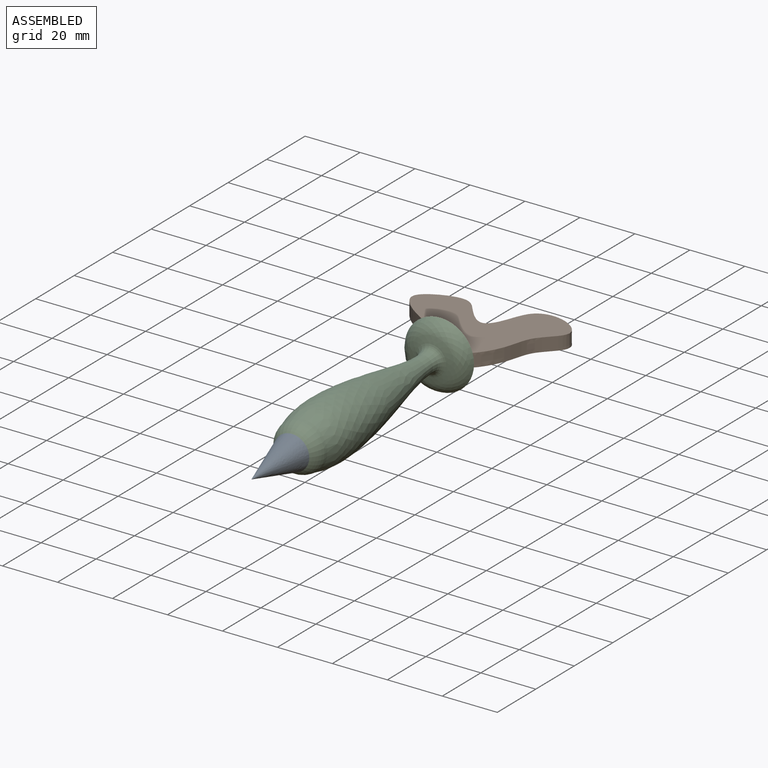
[diagram: assembled view]
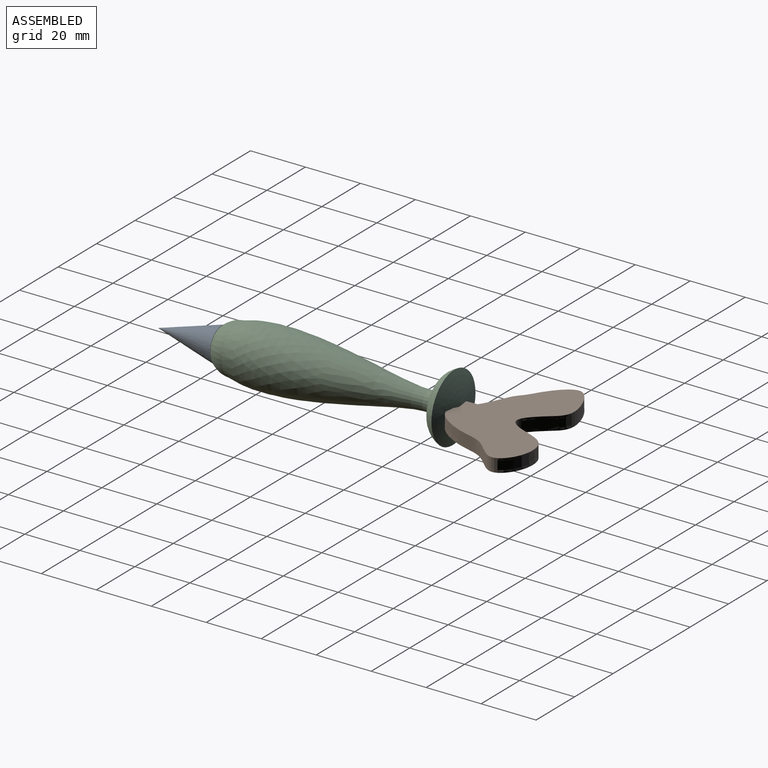
[diagram: assembled view, second angle]
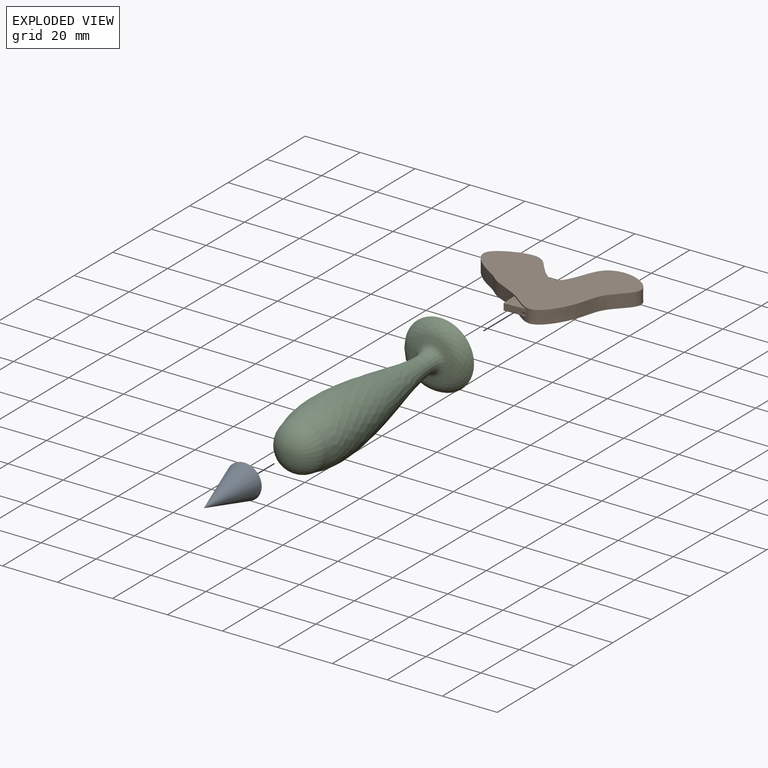
[diagram: exploded view]
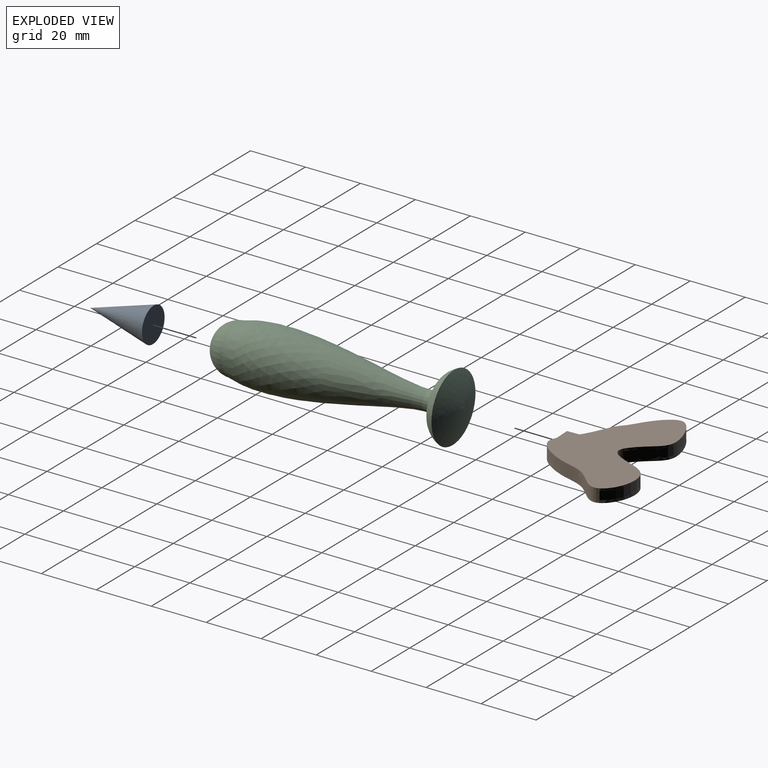
[diagram: exploded view, second angle]
ASSEMBLY  parts=3 mates=2
PART A: 3 faces, bbox 12.8x22.3x12.8 mm
  f0: plane 12.53x12.53mm, normal (0,1,0), area 123.4mm2, adj f2
  f1: plane 0.36x0.36mm, normal (0,-1,0), area 0mm2, adj f2
  f2: bspline ~22.1x12.53mm, area 456.2mm2, adj f0,f1
PART B: 13 faces, bbox 54.6x37.6x4.8 mm
  f0: extruded ~53.14x36.37mm, area 712.5mm2, adj f1,f2,f6,f7,f8,f9
  f1: plane 54.57x37.62mm, normal (0,0,1), area 1026.5mm2, adj f0
  f2: plane 54.57x37.62mm, normal (0,0,-1), area 1026.5mm2, adj f0
  f3: plane 1.19x0.94mm, normal (1,0,0), area 1.1mm2, adj f4,f10,f11,f12
  f4: plane 1.49x0.95mm, normal (0,0,-1), area 0.7mm2, adj f3,f5,f11,f12
  f5: plane 1.19x0.13mm, normal (-1,0,0), area 0.2mm2, adj f4,f10,f11,f12
  f6: plane 8.27x6.11mm, normal (0,0,-1), area 22.2mm2, adj f0,f7,f9,f11
  f7: plane 2.42x0.05mm, normal (1,0,0), area 0.1mm2, adj f0,f6,f8,f11
  f8: plane 8.27x6.11mm, normal (0,0,1), area 22.2mm2, adj f0,f7,f9,f11
  f9: plane 5.85x2.42mm, normal (-1,0,0), area 14.1mm2, adj f0,f6,f8,f11
  f10: plane 1.49x0.95mm, normal (0,0,1), area 0.7mm2, adj f3,f5,f11,f12
  f11: plane 7.95x2.42mm, normal (0,1,0), area 17.5mm2, adj f3,f4,f5,f6,f7,f8,f9,f10
  f12: extruded ~1.47x1.19mm, area 2mm2, adj f3,f4,f5,f10
PART C: 3 faces, bbox 25.6x85.2x24.5 mm
  f0: torus R=0.37mm, axis (-0.04,1,0), area 467.8mm2, adj f1
  f1: revolved ~77.01x25.56mm, area 3992.2mm2, adj f0
  f2: revolved ~24.43x12.23mm, area 0mm2
PLACE A rot(axis=(0,0,1),2.5deg) t=(16.49,30.74,-15.02)mm
PLACE B rot(axis=(1,0.02,0),180deg) t=(-6.16,127.14,1.71)mm
PLACE C t=(-8.73,35.56,0)mm
MATE fastened A.f0 <-> C.f0  axis (-0.04,1,0) through (-17.35,29.26,0)mm
MATE fastened B.f11 <-> C.f0  axis (0.04,-1,0) through (-21.02,112.98,0)mm
